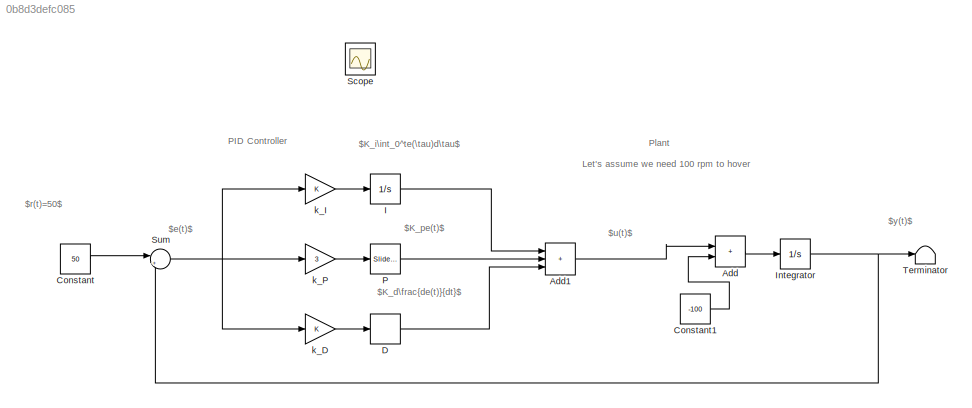
MODEL slx_0b8d3defc085
KIND model
CONFIG AbsTol = auto
CONFIG EnableMultiTasking = off
CONFIG FixedStep = auto
CONFIG MaxStep = auto
CONFIG MinStep = auto
CONFIG RelTol = 1e-3
CONFIG SampleTimeConstraint = Unconstrained
CONFIG SolverName = VariableStepAuto
CONFIG StartTime = 0.0
CONFIG StopTime = 50
BLOCK [Sum] Add
  IconShape = rectangular
BLOCK [Sum] Add1
  IconShape = rectangular
  Inputs = +++
BLOCK [Constant] Constant
  Value = 50
BLOCK [Constant] Constant1
  Value = -100
BLOCK [Derivative] D
  CoefficientInTFapproximation = Inf
BLOCK [Integrator] I
BLOCK [Integrator] Integrator
BLOCK [Reference] P  REF=simulink/Math
Operations/Slider
Gain
  SourceBlock = simulink/Math\nOperations/Slider\nGain
  SourceType = Slider Gain
BLOCK [Scope] Scope
  ActiveDisplayYMaximum = 76.36266
  ActiveDisplayYMinimum = -17.88871
  Floating = off
  GraphicalSettings = {"GraphicalSettings":{"LegacySettings":true,"Style":{"AxesScalingProperties":{"ScaleAxesLimitsAtStop":false},"Style":{"AxesColor":"[0 0 0]","ChannelNames":[""],"ColorOrder":"[1 0.909803921568627 0.392156862745098;0.149019607843137 0.549019607843137 0.866666666666667;0.96078431372549 0.466666666666667 0.16078431372549;0.286274509803922 0.858823529411765 0.250980392156863;0.752941176470588 0.3607843...<+574ch>
  IOType = viewer
  MultipleDisplayCache = [{"MaxYLimMag":76.36266,"MaxYLimReal":76.36266,"MinYLimMag":0,"MinYLimReal":-17.88871,"PlotAsMagnitudePhase":false,"ShowGrid":true,"ShowLegend":false,"Title":"%<SignalLabel>","YLabel":""}]
  NumInputPorts = 1
  WasSavedAsWebScope = on
BLOCK [Sum] Sum
  Inputs = |+-
BLOCK [Terminator] Terminator
BLOCK [Gain] k_D
BLOCK [Gain] k_I
BLOCK [Gain] k_P
  Gain = 3
ANNOTATION (root): $e(t)$
ANNOTATION (root): $u(t)$
ANNOTATION (root): $y(t)$
ANNOTATION (root): $K_d\frac{de(t)}{dt}$
ANNOTATION (root): $K_i\int_0^te(\tau)d\tau$
ANNOTATION (root): $K_pe(t)$
ANNOTATION (root): $r(t)=50$
ANNOTATION (root): Let's assume we need 100 rpm to hover
ANNOTATION (root): PID Controller
ANNOTATION (root): Plant
LINE Add1:1 -> Add:1
LINE Add:1 -> Integrator:1
LINE Constant1:1 -> Add:2
LINE Constant:1 -> Sum:1
LINE D:1 -> Add1:3
LINE I:1 -> Add1:1
NET Integrator:1 -> Sum:2, Terminator:1
LINE P:1 -> Add1:2
NET Sum:1 -> k_D:1, k_I:1, k_P:1
LINE k_D:1 -> D:1
LINE k_I:1 -> I:1
LINE k_P:1 -> P:1
note: NET lines group one-source signal fan-out (src -> all destinations, sorted); 1:1 wires keep LINE
